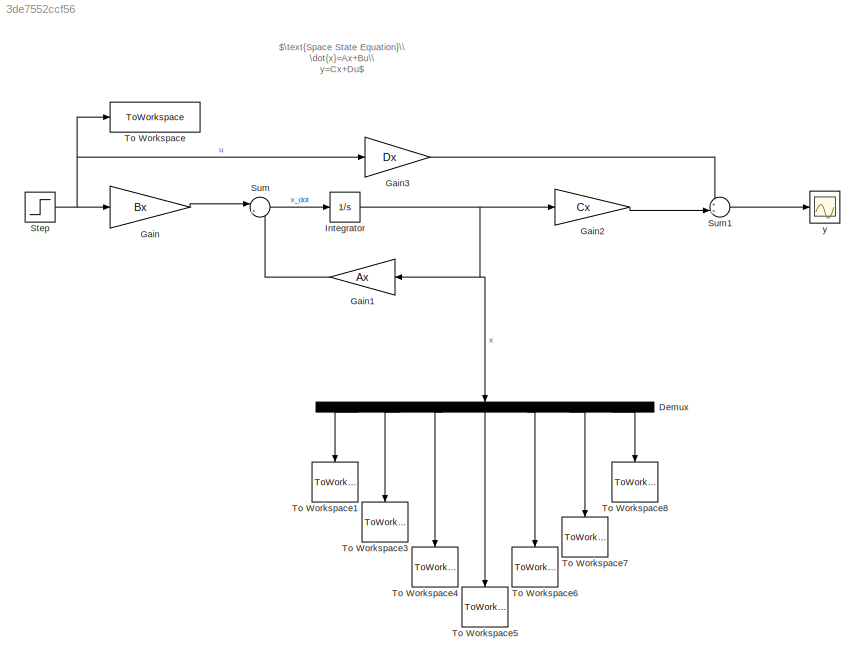
MODEL slx_3de7552ccf56
KIND model
CONFIG AbsTol = auto
CONFIG EnableMultiTasking = off
CONFIG FixedStep = auto
CONFIG MaxStep = auto
CONFIG MinStep = auto
CONFIG RelTol = 1e-3
CONFIG SampleTimeConstraint = Unconstrained
CONFIG Solver = VariableStepAuto
CONFIG SolverName = VariableStepAuto
CONFIG StartTime = 0.0
CONFIG StopTime = 5
BLOCK [Demux] Demux
  NameLocation = left
  Outputs = 7
  Ports = [1, 7]
BLOCK [Gain] Gain
  Gain = Bx
  Multiplication = Matrix(K*u) (u vector)
BLOCK [Gain] Gain1
  Gain = Ax
  Multiplication = Matrix(K*u) (u vector)
BLOCK [Gain] Gain2
  Gain = Cx
  Multiplication = Matrix(K*u) (u vector)
BLOCK [Gain] Gain3
  Gain = Dx
  Multiplication = Matrix(K*u) (u vector)
BLOCK [Integrator] Integrator
  Ports = [1, 1]
BLOCK [Step] Step
  SampleTime = 0
BLOCK [Sum] Sum
  Inputs = |++
  Ports = [2, 1]
BLOCK [Sum] Sum1
  Inputs = ++|
  Ports = [2, 1]
BLOCK [ToWorkspace] To Workspace
  FixptAsFi = on
  MaxDataPoints = inf
  Ports = [1]
  SampleTime = -1
  SaveFormat = Timeseries
  VariableName = u
BLOCK [ToWorkspace] To Workspace1
  FixptAsFi = on
  MaxDataPoints = inf
  NameLocation = left
  Ports = [1]
  SampleTime = -1
  SaveFormat = Timeseries
  VariableName = i
BLOCK [ToWorkspace] To Workspace3
  FixptAsFi = on
  MaxDataPoints = inf
  NameLocation = left
  Ports = [1]
  SampleTime = -1
  SaveFormat = Timeseries
  VariableName = x1
BLOCK [ToWorkspace] To Workspace4
  FixptAsFi = on
  MaxDataPoints = inf
  NameLocation = left
  Ports = [1]
  SampleTime = -1
  SaveFormat = Timeseries
  VariableName = x1d
BLOCK [ToWorkspace] To Workspace5
  FixptAsFi = on
  MaxDataPoints = inf
  NameLocation = left
  Ports = [1]
  SampleTime = -1
  SaveFormat = Timeseries
  VariableName = x2
BLOCK [ToWorkspace] To Workspace6
  FixptAsFi = on
  MaxDataPoints = inf
  NameLocation = left
  Ports = [1]
  SampleTime = -1
  SaveFormat = Timeseries
  VariableName = x2d
BLOCK [ToWorkspace] To Workspace7
  FixptAsFi = on
  MaxDataPoints = inf
  NameLocation = left
  Ports = [1]
  SampleTime = -1
  SaveFormat = Timeseries
  VariableName = x3
BLOCK [ToWorkspace] To Workspace8
  FixptAsFi = on
  MaxDataPoints = inf
  NameLocation = left
  Ports = [1]
  SampleTime = -1
  SaveFormat = Timeseries
  VariableName = x3d
BLOCK [Scope] y
  Floating = off
  NumInputPorts = 1
  Ports = [1]
  ScopeSpecificationString = Simulink.scopes.TimeScopeBlockCfg('CurrentConfiguration', extmgr.ConfigurationSet(extmgr.Configuration('Core','General UI',true),extmgr.Configuration('Core','Source UI',true),extmgr.Configuration('Sources','WiredSimulink',true),extmgr.Configuration('Visuals','Time Domain',true),extmgr.Configuration('Tools','Plot Navigation',true),extmgr.Configuration('Tools','Measurements',true,'Version','2020a'))...<+19ch>
ANNOTATION (root): $\text{Space State Equation}\\ \dot{x}=Ax+Bu\\ y=Cx+Du$
LINE Demux:1 -> To Workspace1:1
LINE Demux:2 -> To Workspace3:1
LINE Demux:3 -> To Workspace4:1
LINE Demux:4 -> To Workspace5:1
LINE Demux:5 -> To Workspace6:1
LINE Demux:6 -> To Workspace7:1
LINE Demux:7 -> To Workspace8:1
LINE Gain1:1 -> Sum:2
LINE Gain2:1 -> Sum1:2
LINE Gain3:1 -> Sum1:1
LINE Gain:1 -> Sum:1
NET Integrator:1 -> Demux:1, Gain1:1, Gain2:1
NET Step:1 -> Gain3:1, Gain:1, To Workspace:1
LINE Sum1:1 -> y:1
LINE Sum:1 -> Integrator:1
note: NET lines group one-source signal fan-out (src -> all destinations, sorted); 1:1 wires keep LINE
